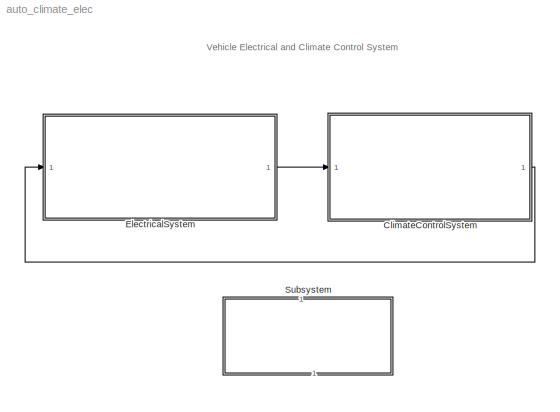
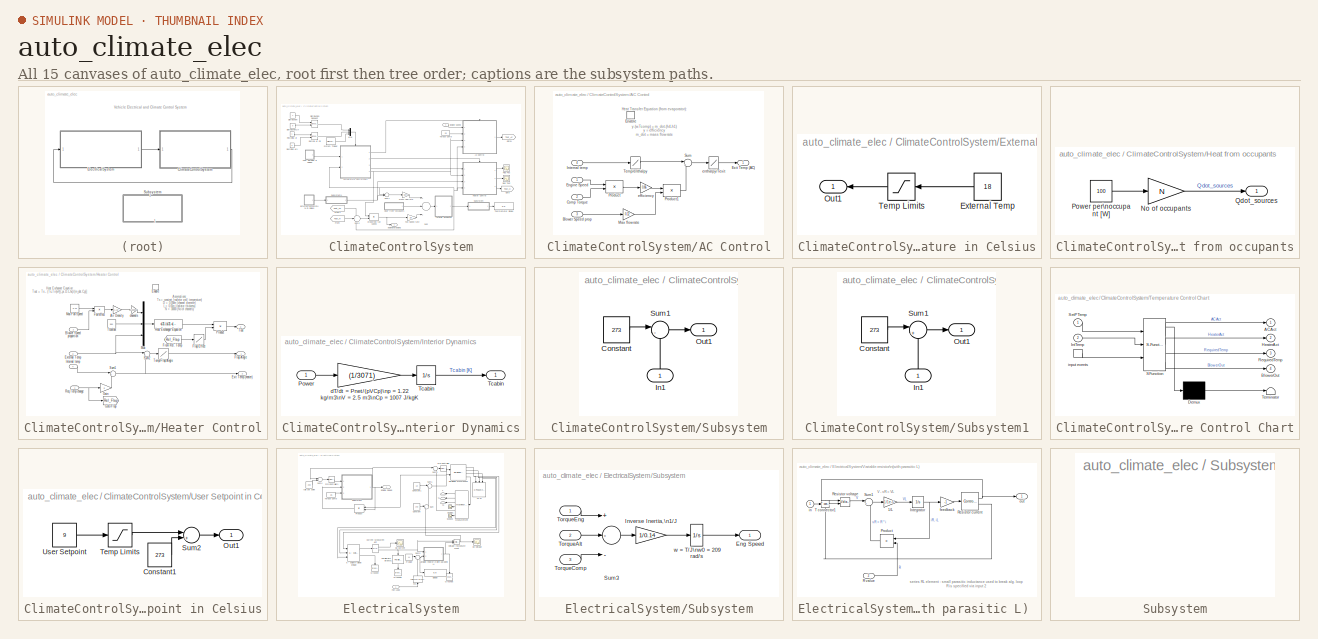
[diagram: thumbnail index - all 15 canvases of the model, root first then tree order]
MODEL auto_climate_elec
KIND model
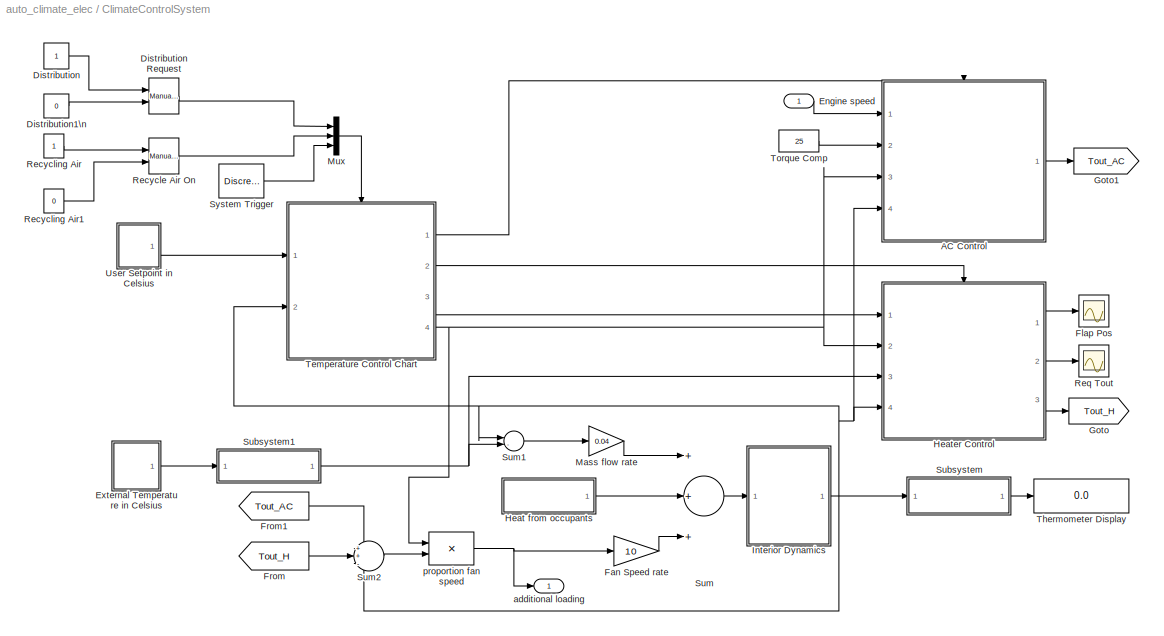
BLOCK [SubSystem] ClimateControlSystem
  MinAlgLoopOccurrences = off
  Ports = [1, 1]
  PropExecContextAcrossSSBoundary = on
  RTWSystemCode = Auto
  TreatAsAtomicUnit = off
BLOCK [SubSystem] ClimateControlSystem/AC Control
  MinAlgLoopOccurrences = off
  Ports = [4, 1, 1]
  PropExecContextAcrossSSBoundary = on
  RTWSystemCode = Auto
  TreatAsAtomicUnit = on
BLOCK [Inport] ClimateControlSystem/AC Control/Blower Speed prop
  IconDisplay = Port number
  LatchInput = off
  Port = 3
BLOCK [Inport] ClimateControlSystem/AC Control/Comp Torque
  IconDisplay = Port number
  LatchInput = off
  Port = 2
BLOCK [EnablePort] ClimateControlSystem/AC Control/Enable
  Ports = []
  StatesWhenEnabling = reset
  ZeroCross = off
BLOCK [Inport] ClimateControlSystem/AC Control/Engine Speed
  IconDisplay = Port number
  LatchInput = off
  Port = 1
BLOCK [Outport] ClimateControlSystem/AC Control/Exit Temp (AC)
  IconDisplay = Port number
  InitialOutput = 0
  OutputWhenDisabled = reset
BLOCK [Inport] ClimateControlSystem/AC Control/Internal temp
  IconDisplay = Port number
  LatchInput = off
  Port = 4
BLOCK [Gain] ClimateControlSystem/AC Control/Max flow rate
  Gain = 0.12
BLOCK [Product] ClimateControlSystem/AC Control/Product
  Ports = [2, 1]
  RndMeth = Floor
BLOCK [Product] ClimateControlSystem/AC Control/Product1
  Inputs = */
  Ports = [2, 1]
  RndMeth = Floor
BLOCK [Sum] ClimateControlSystem/AC Control/Sum
  IconShape = round
  Inputs = |+-
  Ports = [2, 1]
BLOCK [Lookup] ClimateControlSystem/AC Control/Temp//enthalpy
  DialogController = Simulink.DDGSource
  InputValues = [220 230 240 250 260 270 280 285 290 295 300 305 310 315 320]
  OutputValues = [219.97 230.02 240.02 250.05 260.09 270.11 280.13 285.14 290.16 295.17 300.19 305.22 310.24 315.27 320.29]
BLOCK [Gain] ClimateControlSystem/AC Control/efficiency
  Gain = 0.86
BLOCK [Lookup] ClimateControlSystem/AC Control/enthalpy//Texit
  DialogController = Simulink.DDGSource
  InputValues = [219.97 230.02 240.02 250.05 260.09 270.11 280.13 285.14 290.16 295.17 300.19 305.22 310.24 315.27 320.29]
  OutputValues = [220 230 240 250 260 270 280 285 290 295 300 305 310 315 320]
BLOCK [Constant] ClimateControlSystem/Distribution 
BLOCK [Reference] ClimateControlSystem/Distribution Request  REF=simulink/Signal\nRouting/Manual Switch
  Ports = [2, 1]
  SourceBlock = simulink/Signal\nRouting/Manual Switch
  SourceType = Manual Switch
  action = 0
  sw = 0
BLOCK [Constant] ClimateControlSystem/Distribution1\n
  Value = 0
BLOCK [Inport] ClimateControlSystem/Engine speed
  IconDisplay = Port number
  LatchInput = off
  Port = 1
BLOCK [SubSystem] ClimateControlSystem/External Temperature in Celsius
  MaskDisplay = disp(x);
  MaskEnableString = on
  MaskIconFrame = on
  MaskIconOpaque = on
  MaskIconRotate = none
  MaskIconUnits = autoscale
  MaskInitialization = set_param('auto_climate_elec/ClimateControlSystem/External Temperature in Celsius/External Temp','Value',num2str(x))\nexternal_temp_limit\n
  MaskPromptString = Enter the external temperature
  MaskStyleString = edit
  MaskToolTipString = on
  MaskTunableValueString = on
  MaskType = variable
  MaskValueString = 18
  MaskVariables = x=@1;
  MaskVisibilityString = on
  MinAlgLoopOccurrences = off
  Ports = [0, 1]
  PropExecContextAcrossSSBoundary = on
  RTWSystemCode = Auto
  TreatAsAtomicUnit = off
BLOCK [Constant] ClimateControlSystem/External Temperature in Celsius/External Temp
  Value = 18
BLOCK [Outport] ClimateControlSystem/External Temperature in Celsius/Out1
  IconDisplay = Port number
BLOCK [Saturate] ClimateControlSystem/External Temperature in Celsius/Temp Limits
  LowerLimit = -99
  UpperLimit = 100
BLOCK [Gain] ClimateControlSystem/Fan Speed rate
  Gain = 10
BLOCK [Scope] ClimateControlSystem/Flap Pos
  DataFormat = StructureWithTime
  NumInputPorts = 1
  Ports = [1]
  YMax = 41.22
  YMin = 41.175
BLOCK [From] ClimateControlSystem/From
  CloseFcn = tagdialog Close
  DialogController = Simulink.DDGSource
  GotoTag = Tout_H
BLOCK [From] ClimateControlSystem/From1
  CloseFcn = tagdialog Close
  DialogController = Simulink.DDGSource
  GotoTag = Tout_AC
BLOCK [Goto] ClimateControlSystem/Goto
  DialogController = Simulink.DDGSource
  GotoTag = Tout_H
  TagVisibility = local
BLOCK [Goto] ClimateControlSystem/Goto1
  DialogController = Simulink.DDGSource
  GotoTag = Tout_AC
  TagVisibility = local
BLOCK [SubSystem] ClimateControlSystem/Heat from occupants
  AttributesFormatString = No. of occupants: %<N>
  MaskDisplay = disp('Heat Sources')
  MaskEnableString = on
  MaskIconFrame = on
  MaskIconOpaque = on
  MaskIconRotate = none
  MaskIconUnits = autoscale
  MaskPromptString = Number of occupants:
  MaskStyleString = edit
  MaskToolTipString = on
  MaskTunableValueString = on
  MaskType = Heat from occupants
  MaskValueString = 1
  MaskVariables = N=@1;
  MaskVisibilityString = on
  MinAlgLoopOccurrences = off
  Ports = [0, 1]
  PropExecContextAcrossSSBoundary = on
  RTWSystemCode = Auto
  TreatAsAtomicUnit = off
BLOCK [Gain] ClimateControlSystem/Heat from occupants/No of occupants
  Gain = N
BLOCK [Constant] ClimateControlSystem/Heat from occupants/Power per\noccupant [W]
  Value = 100
BLOCK [Outport] ClimateControlSystem/Heat from occupants/Qdot_sources
  IconDisplay = Port number
BLOCK [SubSystem] ClimateControlSystem/Heater Control
  MinAlgLoopOccurrences = off
  Ports = [4, 3, 1]
  PropExecContextAcrossSSBoundary = on
  RTWSystemCode = Auto
  TreatAsAtomicUnit = on
BLOCK [Gain] ClimateControlSystem/Heater Control/Air Density
  Gain = 1.22
BLOCK [Inport] ClimateControlSystem/Heater Control/Blower Speed proportion
  IconDisplay = Port number
  LatchInput = off
  Port = 2
BLOCK [EnablePort] ClimateControlSystem/Heater Control/Enable
  Ports = []
  StatesWhenEnabling = reset
  ZeroCross = off
BLOCK [Outport] ClimateControlSystem/Heater Control/Exit Temp (heater)
  IconDisplay = Port number
  InitialOutput = 0
  OutputWhenDisabled = reset
  Port = 2
BLOCK [Inport] ClimateControlSystem/Heater Control/External Temp
  IconDisplay = Port number
  LatchInput = off
  Port = 3
BLOCK [Product] ClimateControlSystem/Heater Control/Fan effect
  Ports = [2, 1]
  RndMeth = Floor
BLOCK [Outport] ClimateControlSystem/Heater Control/Flap Angle
  IconDisplay = Port number
  InitialOutput = 0
  OutputWhenDisabled = reset
BLOCK [Lookup] ClimateControlSystem/Heater Control/Flap Effect
  DialogController = Simulink.DDGSource
  InputValues = [0 3 5 10 50  90 100 200 ]
  OutputValues = [0 300 100  10 10  10 3 1]
BLOCK [From] ClimateControlSystem/Heater Control/From Rel. Temp
  CloseFcn = tagdialog Close
  DialogController = Simulink.DDGSource
  GotoTag = Rel_Flap
BLOCK [Gain] ClimateControlSystem/Heater Control/Gain
  Gain = 2
BLOCK [Goto] ClimateControlSystem/Heater Control/Goto Flap
  DialogController = Simulink.DDGSource
  GotoTag = Rel_Flap
  TagVisibility = local
BLOCK [Fcn] ClimateControlSystem/Heater Control/Heat Exchanger Equation
  Expr = u[2]-(u[2]-u[3])*exp(-(pi*0.004*0.05*23.8)/(u[1]*1007))
BLOCK [Inport] ClimateControlSystem/Heater Control/Internal temp
  IconDisplay = Port number
  LatchInput = off
  Port = 4
BLOCK [Constant] ClimateControlSystem/Heater Control/Max Fan Speed
  Value = 0.12
BLOCK [Mux] ClimateControlSystem/Heater Control/Mux
  DisplayOption = bar
  Inputs = 3
  Ports = [3, 1]
BLOCK [Product] ClimateControlSystem/Heater Control/Product
  Ports = [2, 1]
  RndMeth = Floor
BLOCK [Inport] ClimateControlSystem/Heater Control/Req Temp change
  IconDisplay = Port number
  LatchInput = off
  Port = 1
BLOCK [Sum] ClimateControlSystem/Heater Control/Sum1
  IconShape = round
  Ports = [2, 1]
BLOCK [Sum] ClimateControlSystem/Heater Control/Sum2
  IconShape = round
  Inputs = |-+
  Ports = [2, 1]
BLOCK [Constant] ClimateControlSystem/Heater Control/Tcoolant 
  Value = 350
BLOCK [Lookup] ClimateControlSystem/Heater Control/Temp//Flap Angle
  DialogController = Simulink.DDGSource
  InputValues = [0 10 20 30 40 50 60 75 100 200]
  OutputValues = [0 20 30 45 60 75 90 90 90 90]
BLOCK [Outport] ClimateControlSystem/Heater Control/Tout
  IconDisplay = Port number
  InitialOutput = 0
  OutputWhenDisabled = reset
  Port = 3
BLOCK [Gain] ClimateControlSystem/Heater Control/channels
  Gain = 1/30000
BLOCK [SubSystem] ClimateControlSystem/Interior Dynamics
  MaskDisplay = image(imread('car_int.jpg'))
  MaskIconFrame = off
  MaskIconOpaque = on
  MaskIconRotate = none
  MaskIconUnits = autoscale
  MaskType = Vehicle Cabin Dynamics
  MinAlgLoopOccurrences = off
  Ports = [1, 1]
  PropExecContextAcrossSSBoundary = on
  RTWSystemCode = Auto
  TreatAsAtomicUnit = off
BLOCK [Inport] ClimateControlSystem/Interior Dynamics/Power
  IconDisplay = Port number
  LatchInput = off
  Port = 1
BLOCK [Integrator] ClimateControlSystem/Interior Dynamics/Tcabin
  InitialCondition = 291
  Ports = [1, 1]
  ZeroCross = off
BLOCK [Outport] ClimateControlSystem/Interior Dynamics/Tcabin 
  IconDisplay = Port number
BLOCK [Gain] ClimateControlSystem/Interior Dynamics/dT//dt = Pnet//(pVCp)\np = 1.22 kg//m3\nV = 2.5 m3\nCp = 1007 J//kgK
  Gain = (1/3071)
BLOCK [Gain] ClimateControlSystem/Mass flow rate
  Gain = 0.04
BLOCK [Mux] ClimateControlSystem/Mux
  DisplayOption = bar
  Inputs = 3
  Ports = [3, 1]
BLOCK [Reference] ClimateControlSystem/Recycle Air On  REF=simulink/Signal\nRouting/Manual Switch
  Ports = [2, 1]
  SourceBlock = simulink/Signal\nRouting/Manual Switch
  SourceType = Manual Switch
  action = 0
  sw = 0
BLOCK [Constant] ClimateControlSystem/Recycling Air
BLOCK [Constant] ClimateControlSystem/Recycling Air1
  Value = 0
BLOCK [Scope] ClimateControlSystem/Req Tout
  DataFormat = StructureWithTime
  NumInputPorts = 1
  Ports = [1]
  SaveName = ScopeData1
  YMax = 41.22
  YMin = 41.175
BLOCK [SubSystem] ClimateControlSystem/Subsystem
  MaskDisplay = disp('Kelvin to Celsius')
  MaskIconFrame = on
  MaskIconOpaque = on
  MaskIconRotate = none
  MaskIconUnits = autoscale
  MinAlgLoopOccurrences = off
  Ports = [1, 1]
  PropExecContextAcrossSSBoundary = on
  RTWSystemCode = Auto
  TreatAsAtomicUnit = off
BLOCK [Constant] ClimateControlSystem/Subsystem/Constant
  Value = 273
BLOCK [Inport] ClimateControlSystem/Subsystem/In1
  IconDisplay = Port number
  LatchInput = off
  Port = 1
BLOCK [Outport] ClimateControlSystem/Subsystem/Out1
  IconDisplay = Port number
BLOCK [Sum] ClimateControlSystem/Subsystem/Sum1
  IconShape = round
  Inputs = |-+
  Ports = [2, 1]
BLOCK [SubSystem] ClimateControlSystem/Subsystem1
  MaskDisplay = disp('Celsius to Kelvin')
  MaskIconFrame = on
  MaskIconOpaque = on
  MaskIconRotate = none
  MaskIconUnits = autoscale
  MinAlgLoopOccurrences = off
  Ports = [1, 1]
  PropExecContextAcrossSSBoundary = on
  RTWSystemCode = Auto
  TreatAsAtomicUnit = off
BLOCK [Constant] ClimateControlSystem/Subsystem1/Constant
  Value = 273
BLOCK [Inport] ClimateControlSystem/Subsystem1/In1
  IconDisplay = Port number
  LatchInput = off
  Port = 1
BLOCK [Outport] ClimateControlSystem/Subsystem1/Out1
  IconDisplay = Port number
BLOCK [Sum] ClimateControlSystem/Subsystem1/Sum1
  IconShape = round
  Inputs = |++
  Ports = [2, 1]
BLOCK [Sum] ClimateControlSystem/Sum
  Inputs = +++
  Ports = [3, 1]
BLOCK [Sum] ClimateControlSystem/Sum1
  IconShape = round
  Inputs = |-+
  Ports = [2, 1]
BLOCK [Sum] ClimateControlSystem/Sum2
  IconShape = round
  Inputs = ++-
  Ports = [3, 1]
BLOCK [DiscretePulseGenerator] ClimateControlSystem/System Trigger
  Period = 1/60
  Ports = [0, 1]
  PulseType = Time based
  PulseWidth = 50
BLOCK [SubSystem] ClimateControlSystem/Temperature Control Chart
  MaskDescription = Stateflow diagram
  MaskDisplay = plot(sf('Private','sfblk','xIcon'),sf('Private','sfblk','yIcon'));text(0.5,0,sf('Private', 'sfblk', 'tIcon'),'HorizontalAl','Center','VerticalAl','Bottom');
  MaskIconFrame = off
  MaskIconOpaque = off
  MaskIconRotate = none
  MaskIconUnits = autoscale
  MaskSelfModifiable = on
  MaskType = Stateflow
  MinAlgLoopOccurrences = off
  Ports = [2, 4, 0, 1]
  PropExecContextAcrossSSBoundary = on
  RTWSystemCode = Auto
  TreatAsAtomicUnit = on
BLOCK [Demux] ClimateControlSystem/Temperature Control Chart/ Demux 
  Outputs = 1
  Ports = [1, 1]
BLOCK [S-Function] ClimateControlSystem/Temperature Control Chart/ SFunction 
  FunctionName = sf_sfun
  PortCounts = [3 5]
  Ports = [3, 5]
  Tag = Stateflow S-Function auto_climate_elec 1
BLOCK [Terminator] ClimateControlSystem/Temperature Control Chart/ Terminator 
BLOCK [TriggerPort] ClimateControlSystem/Temperature Control Chart/ input events 
  Ports = [0, 1]
  ShowOutputPort = on
  TriggerType = either
  ZeroCross = off
BLOCK [Outport] ClimateControlSystem/Temperature Control Chart/ACAct
  IconDisplay = Port number
BLOCK [Outport] ClimateControlSystem/Temperature Control Chart/BlowerOut
  IconDisplay = Port number
  Port = 4
BLOCK [Outport] ClimateControlSystem/Temperature Control Chart/HeaterAct
  IconDisplay = Port number
  Port = 2
BLOCK [Inport] ClimateControlSystem/Temperature Control Chart/IntTemp
  IconDisplay = Port number
  LatchInput = off
  Port = 2
BLOCK [Outport] ClimateControlSystem/Temperature Control Chart/RequiredTemp
  IconDisplay = Port number
  Port = 3
BLOCK [Inport] ClimateControlSystem/Temperature Control Chart/SetPTemp
  IconDisplay = Port number
  LatchInput = off
  Port = 1
BLOCK [Display] ClimateControlSystem/Thermometer Display
  Decimation = 1
  Ports = [1]
BLOCK [Constant] ClimateControlSystem/Torque Comp
  Value = 25
BLOCK [SubSystem] ClimateControlSystem/User Setpoint in Celsius
  MaskDisplay = disp(num2str(USet))
  MaskEnableString = on
  MaskIconFrame = on
  MaskIconOpaque = on
  MaskIconRotate = none
  MaskIconUnits = autoscale
  MaskInitialization = set_param('auto_climate_elec/ClimateControlSystem/User Setpoint in Celsius/User Setpoint','Value',num2str(USet))
  MaskPromptString = Enter the Temperature you require
  MaskStyleString = edit
  MaskToolTipString = on
  MaskTunableValueString = on
  MaskValueString = 9
  MaskVariables = USet=@1;
  MaskVisibilityString = on
  MinAlgLoopOccurrences = off
  Ports = [0, 1]
  PropExecContextAcrossSSBoundary = on
  RTWSystemCode = Auto
  TreatAsAtomicUnit = off
BLOCK [Constant] ClimateControlSystem/User Setpoint in Celsius/Constant1
  Value = 273
BLOCK [Outport] ClimateControlSystem/User Setpoint in Celsius/Out1
  IconDisplay = Port number
BLOCK [Sum] ClimateControlSystem/User Setpoint in Celsius/Sum2
  IconShape = round
  Inputs = |++
  Ports = [2, 1]
BLOCK [Saturate] ClimateControlSystem/User Setpoint in Celsius/Temp Limits
  LowerLimit = -99
  UpperLimit = 100
BLOCK [Constant] ClimateControlSystem/User Setpoint in Celsius/User Setpoint
  Value = 9
BLOCK [Outport] ClimateControlSystem/additional loading
  IconDisplay = Port number
BLOCK [Product] ClimateControlSystem/proportion fan speed
  Ports = [2, 1]
  RndMeth = Floor
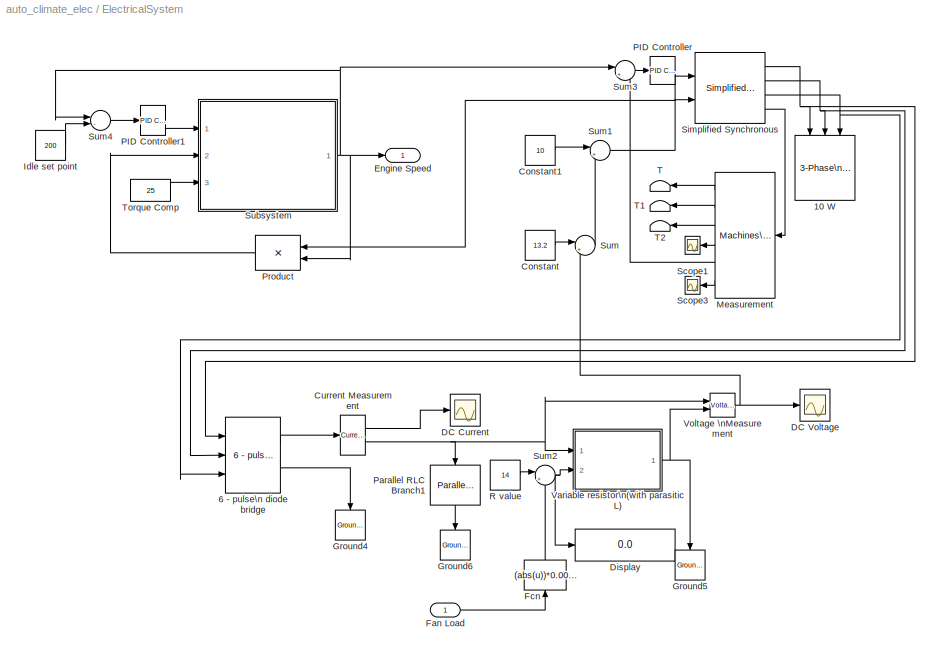
BLOCK [SubSystem] ElectricalSystem
  MinAlgLoopOccurrences = off
  Ports = [1, 1]
  PropExecContextAcrossSSBoundary = on
  RTWSystemCode = Auto
  TreatAsAtomicUnit = off
BLOCK [Scope] ElectricalSystem/ DC Current
  DataFormat = StructureWithTime
  LimitDataPoints = off
  NumInputPorts = 1
  Ports = [1]
  YMax = 16.75
  YMin = 15
  ZoomMode = xonly
BLOCK [Reference] ElectricalSystem/10 W  REF=powerlib2/Elements/3-Phase\nParallel RLC Load
  P3 = 1
  Ports = [3]
  QC3 = 0
  QL3 = 0
  SourceBlock = powerlib2/Elements/3-Phase\nParallel RLC Load
  SourceType = 3-phase parallel RLC load
  Vpp = 20
  fn = 60
BLOCK [Reference] ElectricalSystem/6 - pulse\n diode  bridge  REF=powerlib_extras/Three-Phase\nLibrary/6 - pulse\n diode  bridge
  Cs = 100e-09
  Lon = 10e-6
  Ports = [3, 2]
  Ron = 0.01
  Rs = 1e10
  SourceBlock = powerlib_extras/Three-Phase\nLibrary/6 - pulse\n diode  bridge
  SourceType = Six-pulse diode bridge
  Vf = 0.8
BLOCK [Constant] ElectricalSystem/Constant
  Value = 13.2
BLOCK [Constant] ElectricalSystem/Constant1
  Value = 10
BLOCK [Reference] ElectricalSystem/Current Measurement  REF=powerlib2/Measurements/Current Measurement
  OutputType = Magnitude
  PSBOutputType = 01
  PSBequivalent = 0
  PhasorSimulation = off
  Ports = [1, 2]
  SourceBlock = powerlib2/Measurements/Current Measurement
  SourceType = Current Measurement
  Tag = PoWeRsYsTeMmEaSuReMeNt
BLOCK [Scope] ElectricalSystem/DC Voltage
  DataFormat = StructureWithTime
  LimitDataPoints = off
  NumInputPorts = 1
  Ports = [1]
  SaveName = ScopeData3
  YMax = 12.9
  YMin = 11.9
  ZoomMode = xonly
BLOCK [Display] ElectricalSystem/Display
  Decimation = 1
  Ports = [1]
BLOCK [Outport] ElectricalSystem/Engine Speed
  IconDisplay = Port number
  InitialOutput = 0
BLOCK [Inport] ElectricalSystem/Fan Load
  IconDisplay = Port number
  LatchInput = off
  Port = 1
BLOCK [Fcn] ElectricalSystem/Fcn
  Expr = (abs(u))*0.0001
BLOCK [Reference] ElectricalSystem/Ground4  REF=powerlib2/Connectors/Ground (input)
  Ports = [1]
  SourceBlock = powerlib2/Connectors/Ground (input)
  SourceType = Ground
  Tag = PoWeRsYsTeMbLoCk
BLOCK [Reference] ElectricalSystem/Ground5  REF=powerlib2/Connectors/Ground (input)
  Ports = [1]
  SourceBlock = powerlib2/Connectors/Ground (input)
  SourceType = Ground
  Tag = PoWeRsYsTeMbLoCk
BLOCK [Reference] ElectricalSystem/Ground6  REF=powerlib2/Connectors/Ground (input)
  Ports = [1]
  SourceBlock = powerlib2/Connectors/Ground (input)
  SourceType = Ground
  Tag = PoWeRsYsTeMbLoCk
BLOCK [Constant] ElectricalSystem/Idle set point
  Value = 200
BLOCK [Reference] ElectricalSystem/Measurement  REF=powerlib2/Machines/Machines\nMeasurement\nDemux
  Ports = [1, 6]
  SourceBlock = powerlib2/Machines/Machines\nMeasurement\nDemux
  SourceType = Machine measurements
  asm1 = on
  asm10 = on
  asm11 = on
  asm2 = on
  asm3 = on
  asm4 = on
  asm5 = on
  asm6 = on
  asm7 = on
  asm8 = on
  asm9 = on
  lastType = 1
  machType = Simplified synchronous
  pmsm1 = on
  pmsm2 = on
  pmsm3 = on
  pmsm4 = on
  pmsm5 = on
  pmsm6 = on
  sm1 = on
  sm10 = on
  sm11 = on
  sm115 = off
  sm12 = off
  sm13 = off
  sm14 = off
  sm2 = on
  sm3 = on
  sm4 = on
  sm5 = on
  sm6 = on
  sm7 = on
  sm8 = on
  sm9 = on
  ssm1 = on
  ssm2 = on
  ssm3 = on
  ssm4 = on
  ssm5 = on
  ssm6 = on
BLOCK [Reference] ElectricalSystem/PID Controller  REF=simulink_extras/Additional\nLinear/PID Controller
  D = 1
  I = 8
  P = 2
  Ports = [1, 1]
  SourceBlock = simulink_extras/Additional\nLinear/PID Controller
  SourceType = PID Controller
BLOCK [Reference] ElectricalSystem/PID Controller1  REF=simulink_extras/Additional\nLinear/PID Controller
  D = 0
  I = 8
  P = 2
  Ports = [1, 1]
  SourceBlock = simulink_extras/Additional\nLinear/PID Controller
  SourceType = PID Controller
BLOCK [Reference] ElectricalSystem/Parallel RLC Branch1  REF=powerlib2/Elements/Parallel RLC Branch
  PSBOutputType = 1
  Ports = [1, 1]
  SourceBlock = powerlib2/Elements/Parallel RLC Branch
  SourceType = Parallel RLC Branch
  Tag = PoWeRsYsTeMbLoCk
  a = 100
  b = inf
  c = 50e-06
  mesure = None
BLOCK [Product] ElectricalSystem/Product
  Inputs = */
  Ports = [2, 1]
  RndMeth = Floor
BLOCK [Constant] ElectricalSystem/R value
  Value = 14
BLOCK [Scope] ElectricalSystem/Scope1
  DataFormat = StructureWithTime
  LimitDataPoints = off
  NumInputPorts = 1
  Ports = [1]
  SaveName = ScopeData2
  YMax = 17.5
  YMin = -17.5
  ZoomMode = xonly
BLOCK [Scope] ElectricalSystem/Scope3
  DataFormat = StructureWithTime
  LimitDataPoints = off
  NumInputPorts = 1
  Ports = [1]
  SaveName = ScopeData4
  YMax = 17.5
  YMin = -17.5
  ZoomMode = xonly
BLOCK [Reference] ElectricalSystem/Simplified Synchronous   REF=powerlib2/Machines/Simplified Synchronous \nMachine SI Units
  LoadFlowParameters = [1,0,0,0,0]
  PSBOutputType = 1111
  Ports = [2, 4]
  SourceBlock = powerlib2/Machines/Simplified Synchronous \nMachine SI Units
  SourceType = Simplified Synchronous Machine
  Tag = PoWeRsYsTeMbLoCk
  conType = 3-wire Y
  iounits = 1
  x1 = [ 750, 20, 60 ]
  x2 = [ inf, 0, 3]
  x3 = [ 0.1, 2.15e-5 ]
  x4 = [ 0   0   0,0,0   0,0,0 ]
BLOCK [SubSystem] ElectricalSystem/Subsystem
  MinAlgLoopOccurrences = off
  Ports = [3, 1]
  PropExecContextAcrossSSBoundary = on
  RTWSystemCode = Auto
  TreatAsAtomicUnit = off
BLOCK [Outport] ElectricalSystem/Subsystem/Eng Speed
  IconDisplay = Port number
  InitialOutput = 0
BLOCK [Gain] ElectricalSystem/Subsystem/Inverse Inertia,\n1//J
  Gain = 1/0.14
BLOCK [Sum] ElectricalSystem/Subsystem/Sum3
  Inputs = +--
  Ports = [3, 1]
BLOCK [Inport] ElectricalSystem/Subsystem/TorqueAlt
  IconDisplay = Port number
  LatchInput = off
  Port = 2
BLOCK [Inport] ElectricalSystem/Subsystem/TorqueComp
  IconDisplay = Port number
  LatchInput = off
  Port = 3
BLOCK [Inport] ElectricalSystem/Subsystem/TorqueEng
  IconDisplay = Port number
  LatchInput = off
  Port = 1
BLOCK [Integrator] ElectricalSystem/Subsystem/w = T//J\nw0 = 209 rad//s
  InitialCondition = 209.48
  Ports = [1, 1]
  ZeroCross = off
BLOCK [Sum] ElectricalSystem/Sum
  IconShape = round
  Inputs = |+-
  Ports = [2, 1]
BLOCK [Sum] ElectricalSystem/Sum1
  IconShape = round
  Inputs = |++
  Ports = [2, 1]
BLOCK [Sum] ElectricalSystem/Sum2
  IconShape = round
  Inputs = |++
  Ports = [2, 1]
BLOCK [Sum] ElectricalSystem/Sum3
  IconShape = round
  Inputs = |+-
  Ports = [2, 1]
BLOCK [Sum] ElectricalSystem/Sum4
  IconShape = round
  Inputs = |-+
  Ports = [2, 1]
BLOCK [Terminator] ElectricalSystem/T
BLOCK [Terminator] ElectricalSystem/T1
BLOCK [Terminator] ElectricalSystem/T2
BLOCK [Constant] ElectricalSystem/Torque Comp
  Value = 25
BLOCK [SubSystem] ElectricalSystem/Variable resistor\n(with parasitic L) 
  MaskDisplay = plot(s1-30,s2,s3+30,s4,r1,r2,l1,l2,c1,c2,c3,c4,x1,x2,x3,x4)
  MaskIconFrame = on
  MaskIconOpaque = off
  MaskIconRotate = none
  MaskIconUnits = autoscale
  MaskInitialization = [s1,s2,s3,s4,r1,r2,l1,l2,c1,c2,c3,c4,x1,x2,x3,x4] = powericon('Parallel RLC Branch',1,inf,0);
  MinAlgLoopOccurrences = off
  Ports = [2, 1]
  PropExecContextAcrossSSBoundary = on
  RTWSystemCode = Auto
  TreatAsAtomicUnit = off
BLOCK [Gain] ElectricalSystem/Variable resistor\n(with parasitic L) /1//L
  Gain = 1/1e-5
BLOCK [Integrator] ElectricalSystem/Variable resistor\n(with parasitic L) /Integrator
  Ports = [1, 1]
  ZeroCross = off
BLOCK [Product] ElectricalSystem/Variable resistor\n(with parasitic L) /Product
  Ports = [2, 1]
  RndMeth = Floor
BLOCK [Inport] ElectricalSystem/Variable resistor\n(with parasitic L) /R value
  IconDisplay = Port number
  LatchInput = off
  Port = 2
BLOCK [Reference] ElectricalSystem/Variable resistor\n(with parasitic L) /Resistor current  REF=powerlib2/Electrical\nSources/Controlled Current Source
  Description = source block
  PSBOutputType = 11
  Ports = [1, 2]
  SourceBlock = powerlib2/Electrical\nSources/Controlled Current Source
  SourceType = Controlled Current Source
  Tag = PoWeRsYsTeMbLoCk
  freq = 0
  ia = 0
  initsrc = on
  iph = 0
  mesure = None
  srctyp = DC
BLOCK [Reference] ElectricalSystem/Variable resistor\n(with parasitic L) /Resistor voltage  REF=powerlib2/Measurements/Voltage Measurement
  OutputType = Magnitude
  PSBOutputType = 0
  PSBequivalent = 0
  PhasorSimulation = off
  Ports = [2, 1]
  SourceBlock = powerlib2/Measurements/Voltage Measurement
  SourceType = Voltage Measurement
  Tag = PoWeRsYsTeMmEaSuReMeNt
BLOCK [Sum] ElectricalSystem/Variable resistor\n(with parasitic L) /Sum1
  IconShape = round
  Inputs = |+-
  Ports = [2, 1]
BLOCK [Reference] ElectricalSystem/Variable resistor\n(with parasitic L) /T connector1  REF=powerlib2/Connectors/T connector
  PSBOutputType = 1
  Ports = [1, 1, 1]
  SourceBlock = powerlib2/Connectors/T connector
  SourceType = Bus Bar
  Tag = PoWeRsYsTeMbLoCk
BLOCK [Gain] ElectricalSystem/Variable resistor\n(with parasitic L) /feedback
  Gain = -1
BLOCK [Inport] ElectricalSystem/Variable resistor\n(with parasitic L) /in
  IconDisplay = Port number
  LatchInput = off
  Port = 1
BLOCK [Outport] ElectricalSystem/Variable resistor\n(with parasitic L) /out
  IconDisplay = Port number
BLOCK [Reference] ElectricalSystem/Voltage \nMeasurement  REF=powerlib2/Measurements/Voltage Measurement
  OutputType = Magnitude
  PSBOutputType = 0
  PSBequivalent = 1
  PhasorSimulation = off
  Ports = [2, 1]
  SourceBlock = powerlib2/Measurements/Voltage Measurement
  SourceType = Voltage Measurement
  Tag = PoWeRsYsTeMmEaSuReMeNt
BLOCK [SubSystem] Subsystem
  AttributesFormatString = \\n
  MaskDisplay = disp('Double click\\nhere for\\n Model Information')
  MaskIconFrame = on
  MaskIconOpaque = on
  MaskIconRotate = none
  MaskIconUnits = autoscale
  MaskInitialization = %t=matlabroot;\n%cd(t)\n%test123=which('doc_file.html','-all');\n%web(char(test123));\n
  MinAlgLoopOccurrences = off
  OpenFcn = docfile=which('auto_climate_elec.html','-all');\nweb(char(docfile));
  Ports = []
  PropExecContextAcrossSSBoundary = on
  RTWSystemCode = Auto
  TreatAsAtomicUnit = off
ANNOTATION (root): Vehicle Electrical and Climate Control System
ANNOTATION ClimateControlSystem/AC Control: Heat Transfer Equation (from evaporator):\n\ny.(w.Tcomp) = m_dot.(h4-h1)\n\ny = efficiency\nm_dot = mass flow rate\nw = speed of the engine\nTcomp = compressor torque\nh4, h1 = enthalpy
ANNOTATION ClimateControlSystem/Heater Control: Assumptions:\nTs = constant (radiator wall temperature) \nD = 0.004m (channel diameter)\nL = 0.05m (radiator thickness)\nN = 30000 (No of channels)\n\nk = 0.026 W/mK = constant (thermal conductivity of air)\nCp = 1007 J/kgK = constant (specific heat of air)\nLaminar flow (hc = 3.66(k/D) = 23.8 W/m2K )
ANNOTATION ClimateControlSystem/Heater Control: Heat Exchanger Equation:\nTout = Ts - (Ts-Tin)e^[(-pi.D.L.hc)/(m_dot.Cp)]
ANNOTATION ElectricalSystem/Variable resistor\n(with parasitic L) : V - vR = VL
ANNOTATION ElectricalSystem/Variable resistor\n(with parasitic L) : series RL element : small parasitic inductance used to break alg. loop\nR is specified via input 2
LINE ClimateControlSystem/AC Control/Blower Speed prop:1 -> ClimateControlSystem/AC Control/Max flow rate:1
LINE ClimateControlSystem/AC Control/Comp Torque:1 -> ClimateControlSystem/AC Control/Product:2
LINE ClimateControlSystem/AC Control/Engine Speed:1 -> ClimateControlSystem/AC Control/Product:1
LINE ClimateControlSystem/AC Control/Internal temp:1 -> ClimateControlSystem/AC Control/Temp//enthalpy:1
LINE ClimateControlSystem/AC Control/Max flow rate:1 -> ClimateControlSystem/AC Control/Product1:2
LINE ClimateControlSystem/AC Control/Product1:1 -> ClimateControlSystem/AC Control/Sum:2
LINE ClimateControlSystem/AC Control/Product:1 -> ClimateControlSystem/AC Control/efficiency:1
LINE ClimateControlSystem/AC Control/Sum:1 -> ClimateControlSystem/AC Control/enthalpy//Texit:1
LINE ClimateControlSystem/AC Control/Temp//enthalpy:1 -> ClimateControlSystem/AC Control/Sum:1
LINE ClimateControlSystem/AC Control/efficiency:1 -> ClimateControlSystem/AC Control/Product1:1
LINE ClimateControlSystem/AC Control/enthalpy//Texit:1 -> ClimateControlSystem/AC Control/Exit Temp (AC):1
LINE ClimateControlSystem/AC Control:1 -> ClimateControlSystem/Goto1:1
LINE ClimateControlSystem/Distribution :1 -> ClimateControlSystem/Distribution Request:1
LINE ClimateControlSystem/Distribution Request:1 -> ClimateControlSystem/Mux:1
LINE ClimateControlSystem/Distribution1\n:1 -> ClimateControlSystem/Distribution Request:2
LINE ClimateControlSystem/Engine speed:1 -> ClimateControlSystem/AC Control:1
LINE ClimateControlSystem/External Temperature in Celsius/External Temp:1 -> ClimateControlSystem/External Temperature in Celsius/Temp Limits:1
LINE ClimateControlSystem/External Temperature in Celsius/Temp Limits:1 -> ClimateControlSystem/External Temperature in Celsius/Out1:1
LINE ClimateControlSystem/External Temperature in Celsius:1 -> ClimateControlSystem/Subsystem1:1
LINE ClimateControlSystem/Fan Speed rate:1 -> ClimateControlSystem/Sum:3
LINE ClimateControlSystem/From1:1 -> ClimateControlSystem/Sum2:1
LINE ClimateControlSystem/From:1 -> ClimateControlSystem/Sum2:2
LINE ClimateControlSystem/Heat from occupants/No of occupants:1 -> ClimateControlSystem/Heat from occupants/Qdot_sources:1
LINE ClimateControlSystem/Heat from occupants/Power per\noccupant [W]:1 -> ClimateControlSystem/Heat from occupants/No of occupants:1
LINE ClimateControlSystem/Heat from occupants:1 -> ClimateControlSystem/Sum:2
LINE ClimateControlSystem/Heater Control/Air Density:1 -> ClimateControlSystem/Heater Control/channels:1
LINE ClimateControlSystem/Heater Control/Blower Speed proportion:1 -> ClimateControlSystem/Heater Control/Fan effect:2
NET ClimateControlSystem/Heater Control/External Temp:1 -> ClimateControlSystem/Heater Control/Mux:3, ClimateControlSystem/Heater Control/Sum2:1
LINE ClimateControlSystem/Heater Control/Fan effect:1 -> ClimateControlSystem/Heater Control/Air Density:1
LINE ClimateControlSystem/Heater Control/Flap Effect:1 -> ClimateControlSystem/Heater Control/Product:2
LINE ClimateControlSystem/Heater Control/From Rel. Temp:1 -> ClimateControlSystem/Heater Control/Flap Effect:1
LINE ClimateControlSystem/Heater Control/Gain:1 -> ClimateControlSystem/Heater Control/Sum1:2
LINE ClimateControlSystem/Heater Control/Heat Exchanger Equation:1 -> ClimateControlSystem/Heater Control/Product:1
LINE ClimateControlSystem/Heater Control/Internal temp:1 -> ClimateControlSystem/Heater Control/Sum1:1
LINE ClimateControlSystem/Heater Control/Max Fan Speed:1 -> ClimateControlSystem/Heater Control/Fan effect:1
LINE ClimateControlSystem/Heater Control/Mux:1 -> ClimateControlSystem/Heater Control/Heat Exchanger Equation:1
LINE ClimateControlSystem/Heater Control/Product:1 -> ClimateControlSystem/Heater Control/Tout:1
NET ClimateControlSystem/Heater Control/Req Temp change:1 -> ClimateControlSystem/Heater Control/Gain:1, ClimateControlSystem/Heater Control/Goto Flap:1
NET ClimateControlSystem/Heater Control/Sum1:1 -> ClimateControlSystem/Heater Control/Exit Temp (heater):1, ClimateControlSystem/Heater Control/Sum2:2
LINE ClimateControlSystem/Heater Control/Sum2:1 -> ClimateControlSystem/Heater Control/Temp//Flap Angle:1
LINE ClimateControlSystem/Heater Control/Tcoolant :1 -> ClimateControlSystem/Heater Control/Mux:2
LINE ClimateControlSystem/Heater Control/Temp//Flap Angle:1 -> ClimateControlSystem/Heater Control/Flap Angle:1
LINE ClimateControlSystem/Heater Control/channels:1 -> ClimateControlSystem/Heater Control/Mux:1
LINE ClimateControlSystem/Heater Control:1 -> ClimateControlSystem/Flap Pos:1
LINE ClimateControlSystem/Heater Control:2 -> ClimateControlSystem/Req Tout:1
LINE ClimateControlSystem/Heater Control:3 -> ClimateControlSystem/Goto:1
LINE ClimateControlSystem/Interior Dynamics/Power:1 -> ClimateControlSystem/Interior Dynamics/dT//dt = Pnet//(pVCp)\np = 1.22 kg//m3\nV = 2.5 m3\nCp = 1007 J//kgK:1
LINE ClimateControlSystem/Interior Dynamics/Tcabin:1 -> ClimateControlSystem/Interior Dynamics/Tcabin :1
LINE ClimateControlSystem/Interior Dynamics/dT//dt = Pnet//(pVCp)\np = 1.22 kg//m3\nV = 2.5 m3\nCp = 1007 J//kgK:1 -> ClimateControlSystem/Interior Dynamics/Tcabin:1
NET ClimateControlSystem/Interior Dynamics:1 -> ClimateControlSystem/AC Control:4, ClimateControlSystem/Heater Control:4, ClimateControlSystem/Subsystem:1, ClimateControlSystem/Sum1:1, ClimateControlSystem/Sum2:3, ClimateControlSystem/Temperature Control Chart:2
LINE ClimateControlSystem/Mass flow rate:1 -> ClimateControlSystem/Sum:1
LINE ClimateControlSystem/Mux:1 -> ClimateControlSystem/Temperature Control Chart:trigger
LINE ClimateControlSystem/Recycle Air On:1 -> ClimateControlSystem/Mux:2
LINE ClimateControlSystem/Recycling Air1:1 -> ClimateControlSystem/Recycle Air On:2
LINE ClimateControlSystem/Recycling Air:1 -> ClimateControlSystem/Recycle Air On:1
LINE ClimateControlSystem/Subsystem/Constant:1 -> ClimateControlSystem/Subsystem/Sum1:1
LINE ClimateControlSystem/Subsystem/In1:1 -> ClimateControlSystem/Subsystem/Sum1:2
LINE ClimateControlSystem/Subsystem/Sum1:1 -> ClimateControlSystem/Subsystem/Out1:1
LINE ClimateControlSystem/Subsystem1/Constant:1 -> ClimateControlSystem/Subsystem1/Sum1:1
LINE ClimateControlSystem/Subsystem1/In1:1 -> ClimateControlSystem/Subsystem1/Sum1:2
LINE ClimateControlSystem/Subsystem1/Sum1:1 -> ClimateControlSystem/Subsystem1/Out1:1
NET ClimateControlSystem/Subsystem1:1 -> ClimateControlSystem/Heater Control:3, ClimateControlSystem/Sum1:2
LINE ClimateControlSystem/Subsystem:1 -> ClimateControlSystem/Thermometer Display:1
LINE ClimateControlSystem/Sum1:1 -> ClimateControlSystem/Mass flow rate:1
LINE ClimateControlSystem/Sum2:1 -> ClimateControlSystem/proportion fan speed:2
LINE ClimateControlSystem/Sum:1 -> ClimateControlSystem/Interior Dynamics:1
LINE ClimateControlSystem/System Trigger:1 -> ClimateControlSystem/Mux:3
LINE ClimateControlSystem/Temperature Control Chart/ Demux :1 -> ClimateControlSystem/Temperature Control Chart/ Terminator :1
LINE ClimateControlSystem/Temperature Control Chart/ SFunction :1 -> ClimateControlSystem/Temperature Control Chart/ Demux :1
LINE ClimateControlSystem/Temperature Control Chart/ SFunction :2 -> ClimateControlSystem/Temperature Control Chart/ACAct:1
LINE ClimateControlSystem/Temperature Control Chart/ SFunction :3 -> ClimateControlSystem/Temperature Control Chart/HeaterAct:1
LINE ClimateControlSystem/Temperature Control Chart/ SFunction :4 -> ClimateControlSystem/Temperature Control Chart/RequiredTemp:1
LINE ClimateControlSystem/Temperature Control Chart/ SFunction :5 -> ClimateControlSystem/Temperature Control Chart/BlowerOut:1
LINE ClimateControlSystem/Temperature Control Chart/ input events :1 -> ClimateControlSystem/Temperature Control Chart/ SFunction :3
LINE ClimateControlSystem/Temperature Control Chart/IntTemp:1 -> ClimateControlSystem/Temperature Control Chart/ SFunction :2
LINE ClimateControlSystem/Temperature Control Chart/SetPTemp:1 -> ClimateControlSystem/Temperature Control Chart/ SFunction :1
LINE ClimateControlSystem/Temperature Control Chart:1 -> ClimateControlSystem/AC Control:enable
LINE ClimateControlSystem/Temperature Control Chart:2 -> ClimateControlSystem/Heater Control:enable
LINE ClimateControlSystem/Temperature Control Chart:3 -> ClimateControlSystem/Heater Control:1
NET ClimateControlSystem/Temperature Control Chart:4 -> ClimateControlSystem/AC Control:3, ClimateControlSystem/Heater Control:2, ClimateControlSystem/proportion fan speed:1
LINE ClimateControlSystem/Torque Comp:1 -> ClimateControlSystem/AC Control:2
LINE ClimateControlSystem/User Setpoint in Celsius/Constant1:1 -> ClimateControlSystem/User Setpoint in Celsius/Sum2:2
LINE ClimateControlSystem/User Setpoint in Celsius/Sum2:1 -> ClimateControlSystem/User Setpoint in Celsius/Out1:1
LINE ClimateControlSystem/User Setpoint in Celsius/Temp Limits:1 -> ClimateControlSystem/User Setpoint in Celsius/Sum2:1
LINE ClimateControlSystem/User Setpoint in Celsius/User Setpoint:1 -> ClimateControlSystem/User Setpoint in Celsius/Temp Limits:1
LINE ClimateControlSystem/User Setpoint in Celsius:1 -> ClimateControlSystem/Temperature Control Chart:1
NET ClimateControlSystem/proportion fan speed:1 -> ClimateControlSystem/Fan Speed rate:1, ClimateControlSystem/additional loading:1
LINE ClimateControlSystem:1 -> ElectricalSystem:1
LINE ElectricalSystem/6 - pulse\n diode  bridge:1 -> ElectricalSystem/Current Measurement:1
LINE ElectricalSystem/6 - pulse\n diode  bridge:2 -> ElectricalSystem/Ground4:1
LINE ElectricalSystem/Constant1:1 -> ElectricalSystem/Sum1:1
LINE ElectricalSystem/Constant:1 -> ElectricalSystem/Sum:1
LINE ElectricalSystem/Current Measurement:1 -> ElectricalSystem/ DC Current:1
NET ElectricalSystem/Current Measurement:2 -> ElectricalSystem/Parallel RLC Branch1:1, ElectricalSystem/Variable resistor\n(with parasitic L) :1, ElectricalSystem/Voltage \nMeasurement:1
LINE ElectricalSystem/Fan Load:1 -> ElectricalSystem/Fcn:1
LINE ElectricalSystem/Fcn:1 -> ElectricalSystem/Sum2:2
LINE ElectricalSystem/Idle set point:1 -> ElectricalSystem/Sum4:2
LINE ElectricalSystem/Measurement:1 -> ElectricalSystem/T:1
LINE ElectricalSystem/Measurement:2 -> ElectricalSystem/T1:1
LINE ElectricalSystem/Measurement:3 -> ElectricalSystem/T2:1
LINE ElectricalSystem/Measurement:4 -> ElectricalSystem/Scope1:1
LINE ElectricalSystem/Measurement:5 -> ElectricalSystem/Sum3:2
LINE ElectricalSystem/Measurement:6 -> ElectricalSystem/Scope3:1
LINE ElectricalSystem/PID Controller1:1 -> ElectricalSystem/Subsystem:1
NET ElectricalSystem/PID Controller:1 -> ElectricalSystem/Product:1, ElectricalSystem/Simplified Synchronous :1
LINE ElectricalSystem/Parallel RLC Branch1:1 -> ElectricalSystem/Ground6:1
LINE ElectricalSystem/Product:1 -> ElectricalSystem/Subsystem:2
LINE ElectricalSystem/R value:1 -> ElectricalSystem/Sum2:1
NET ElectricalSystem/Simplified Synchronous :1 -> ElectricalSystem/10 W:1, ElectricalSystem/6 - pulse\n diode  bridge:1
NET ElectricalSystem/Simplified Synchronous :2 -> ElectricalSystem/10 W:2, ElectricalSystem/6 - pulse\n diode  bridge:2
NET ElectricalSystem/Simplified Synchronous :3 -> ElectricalSystem/10 W:3, ElectricalSystem/6 - pulse\n diode  bridge:3
LINE ElectricalSystem/Simplified Synchronous :4 -> ElectricalSystem/Measurement:1
LINE ElectricalSystem/Subsystem/Inverse Inertia,\n1//J:1 -> ElectricalSystem/Subsystem/w = T//J\nw0 = 209 rad//s:1
LINE ElectricalSystem/Subsystem/Sum3:1 -> ElectricalSystem/Subsystem/Inverse Inertia,\n1//J:1
LINE ElectricalSystem/Subsystem/TorqueAlt:1 -> ElectricalSystem/Subsystem/Sum3:2
LINE ElectricalSystem/Subsystem/TorqueComp:1 -> ElectricalSystem/Subsystem/Sum3:3
LINE ElectricalSystem/Subsystem/TorqueEng:1 -> ElectricalSystem/Subsystem/Sum3:1
LINE ElectricalSystem/Subsystem/w = T//J\nw0 = 209 rad//s:1 -> ElectricalSystem/Subsystem/Eng Speed:1
NET ElectricalSystem/Subsystem:1 -> ElectricalSystem/Engine Speed:1, ElectricalSystem/Product:2, ElectricalSystem/Sum3:1, ElectricalSystem/Sum4:1
LINE ElectricalSystem/Sum1:1 -> ElectricalSystem/Simplified Synchronous :2
NET ElectricalSystem/Sum2:1 -> ElectricalSystem/Display:1, ElectricalSystem/Variable resistor\n(with parasitic L) :2
LINE ElectricalSystem/Sum3:1 -> ElectricalSystem/PID Controller:1
LINE ElectricalSystem/Sum4:1 -> ElectricalSystem/PID Controller1:1
LINE ElectricalSystem/Sum:1 -> ElectricalSystem/Sum1:2
LINE ElectricalSystem/Torque Comp:1 -> ElectricalSystem/Subsystem:3
LINE ElectricalSystem/Variable resistor\n(with parasitic L) /1//L:1 -> ElectricalSystem/Variable resistor\n(with parasitic L) /Integrator:1
NET ElectricalSystem/Variable resistor\n(with parasitic L) /Integrator:1 -> ElectricalSystem/Variable resistor\n(with parasitic L) /Product:1, ElectricalSystem/Variable resistor\n(with parasitic L) /feedback:1
LINE ElectricalSystem/Variable resistor\n(with parasitic L) /Product:1 -> ElectricalSystem/Variable resistor\n(with parasitic L) /Sum1:2
LINE ElectricalSystem/Variable resistor\n(with parasitic L) /R value:1 -> ElectricalSystem/Variable resistor\n(with parasitic L) /Product:2
NET ElectricalSystem/Variable resistor\n(with parasitic L) /Resistor current:1 -> ElectricalSystem/Variable resistor\n(with parasitic L) /Resistor voltage:1, ElectricalSystem/Variable resistor\n(with parasitic L) /out:1
LINE ElectricalSystem/Variable resistor\n(with parasitic L) /Resistor current:2 -> ElectricalSystem/Variable resistor\n(with parasitic L) /T connector1:enable
LINE ElectricalSystem/Variable resistor\n(with parasitic L) /Resistor voltage:1 -> ElectricalSystem/Variable resistor\n(with parasitic L) /Sum1:1
LINE ElectricalSystem/Variable resistor\n(with parasitic L) /Sum1:1 -> ElectricalSystem/Variable resistor\n(with parasitic L) /1//L:1
LINE ElectricalSystem/Variable resistor\n(with parasitic L) /T connector1:1 -> ElectricalSystem/Variable resistor\n(with parasitic L) /Resistor voltage:2
LINE ElectricalSystem/Variable resistor\n(with parasitic L) /feedback:1 -> ElectricalSystem/Variable resistor\n(with parasitic L) /Resistor current:1
LINE ElectricalSystem/Variable resistor\n(with parasitic L) /in:1 -> ElectricalSystem/Variable resistor\n(with parasitic L) /T connector1:1
NET ElectricalSystem/Variable resistor\n(with parasitic L) :1 -> ElectricalSystem/Ground5:1, ElectricalSystem/Voltage \nMeasurement:2
NET ElectricalSystem/Voltage \nMeasurement:1 -> ElectricalSystem/DC Voltage:1, ElectricalSystem/Sum:2
LINE ElectricalSystem:1 -> ClimateControlSystem:1
note: NET lines group one-source signal fan-out (src -> all destinations, sorted); 1:1 wires keep LINE
CHART ClimateControlSystem/Temperature Control Chart states=21 transitions=26
  STATE_LABEL 'Blower_1\\nentry:BlowerOut=0.2;'
  STATE_LABEL 'Blower_2\\nentry:BlowerOut=0.4;'
  STATE_LABEL 'Blower_3\\nentry:BlowerOut=0.6;'
  STATE_LABEL 'Blower_off\\nentry:BlowerOut=0.0;'
  STATE_LABEL 'Blower_5\\nentry:BlowerOut=1.0;'
  STATE_LABEL 'Blower_4\\nentry:BlowerOut=0.8;'
  STATE_LABEL 'Blower\\nduring:setpoint_calc();'
  STATE_LABEL 'Recyc_Air'
  STATE_LABEL 'Recyc_on'
  STATE_LABEL 'Recyc_off'
  STATE_LABEL 'Heater_AC'
  STATE_LABEL 'H_offAC_off'
  STATE_LABEL 'HeaterAct'
  STATE_LABEL 'ACAct'
  STATE_LABEL 'AirDist'
  STATE_LABEL 'Face'
  STATE_LABEL 'Feet'
  STATE_LABEL 'Defrost'
  STATE_LABEL 'Blower_on'
  STATE_LABEL 'b = in_temp_range(minTemp,maxTemp)'
  STATE_LABEL 'setpoint_calc()'
